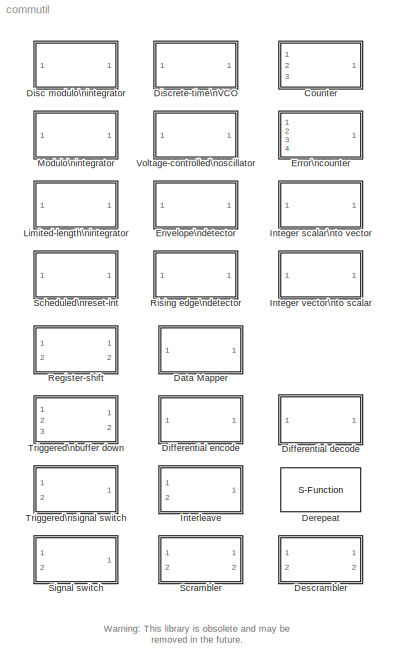
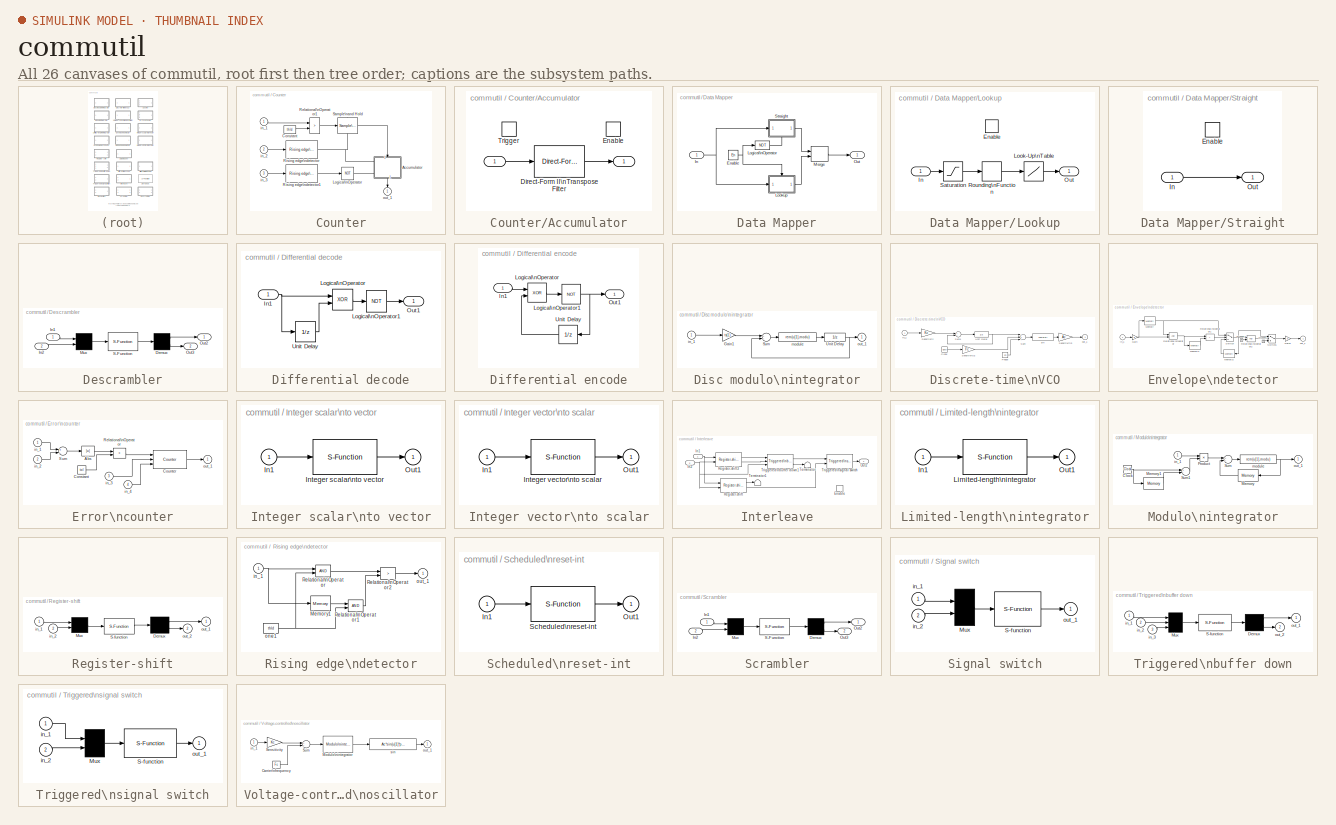
[diagram: thumbnail index - all 26 canvases of the model, root first then tree order]
MODEL commutil
KIND library
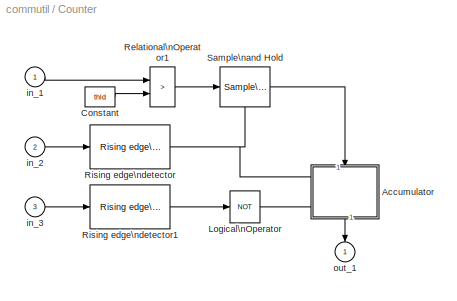
BLOCK [SubSystem] Counter
  MaskDescription = If the 1st inport value is larger than the threshold, the counter increases one at the rising edge of the 2nd inport pulse.
  MaskDisplay = plot(0,0,100,100,[5 10 10 8 10 12 10 10 15],[5 5 12 8 12 8 12 15 15]+40,[5 10 10 8 10 12 10 10 15],[5 5 12 8 12 8 12 15 15]);\ndisp('Counter')
  MaskEnableString = on
  MaskHelp = If the signal at the 1st inport is larger than or equal to the given threshold at the rising edge of the 2nd inport, the counter increases by one. The rising edge of the 3rd port resets the counter to zero.
  MaskIconFrame = on
  MaskIconOpaque = on
  MaskIconRotate = none
  MaskIconUnits = autoscale
  MaskPromptString = Threshold:
  MaskStyleString = edit
  MaskToolTipString = on
  MaskTunableValueString = on
  MaskType = Resettable number counter
  MaskValueString = .2
  MaskVariables = thld=@1;
  MaskVisibilityString = on
  Ports = [3, 1]
  TreatAsAtomicUnit = off
BLOCK [SubSystem] Counter/Accumulator
  Ports = [1, 1, 1, 1]
  TreatAsAtomicUnit = on
BLOCK [Inport] Counter/Accumulator/ 
BLOCK [Outport] Counter/Accumulator/  
  InitialOutput = 0
  OutputWhenDisabled = reset
BLOCK [Reference] Counter/Accumulator/Direct-Form II\nTranspose Filter  REF=dsparch2/Direct-Form II\nTranspose Filter
  Ports = [1, 1]
  SourceBlock = dsparch2/Direct-Form II\nTranspose Filter
  SourceType = Direct-Form II Transpose Filter
  den = [1 -1]
  frame = off
  ic = 0
  num = 1
  numCHANS = 1
BLOCK [EnablePort] Counter/Accumulator/Enable
  Ports = []
  StatesWhenEnabling = reset
BLOCK [TriggerPort] Counter/Accumulator/Trigger
  Ports = []
BLOCK [Constant] Counter/Constant
  Value = thld
BLOCK [Logic] Counter/Logical\nOperator
  Operator = NOT
  Ports = [1, 1]
BLOCK [RelationalOperator] Counter/Relational\nOperator1
  Operator = >
BLOCK [Reference] Counter/Rising edge\ndetector  REF=commutil/Rising edge\ndetector
  Ports = [1, 1]
  SourceBlock = commutil/Rising edge\ndetector
  SourceType = Edge detection
  thld = 0.5
BLOCK [Reference] Counter/Rising edge\ndetector1  REF=commutil/Rising edge\ndetector
  Ports = [1, 1]
  SourceBlock = commutil/Rising edge\ndetector
  SourceType = Edge detection
  thld = 0.5
BLOCK [Reference] Counter/Sample\nand Hold  REF=dspswit2/Sample\nand Hold
  Ports = [1, 1, 0, 1]
  SourceBlock = dspswit2/Sample\nand Hold
  SourceType = Sample and Hold
  initCond = 0
  trig = Rising edge
BLOCK [Inport] Counter/in_1
BLOCK [Inport] Counter/in_2
  Port = 2
BLOCK [Inport] Counter/in_3
  Port = 3
BLOCK [Outport] Counter/out_1
  InitialOutput = 0
BLOCK [SubSystem] Data Mapper
  MaskCallbackString = commblkmapdata(gcb,'MapMode');||
  MaskDescription = Map integer symbols from one coding scheme to another.
  MaskDisplay = disp('Data\\nMapper');
  MaskEnableString = on,on,off
  MaskHelp = <P><FONT SIZE=+0>The Data Mapper block accepts integer inputs and produces\ninteger outputs. You can select one of four mapping modes: <B>Binary to\nGray, Gray to Binary, User Defined, or Straight Through</B>.</FONT>\n\n<P><FONT SIZE=+0>Gray coding is an ordering of binary numbers such that\nall adjacent numbers differ by only one bit. However, the inputs and outputs\nof this block are integers, n...<+4760ch>
  MaskIconFrame = on
  MaskIconOpaque = on
  MaskIconRotate = none
  MaskIconUnits = autoscale
  MaskInitialization = [En,IPValues,OPValues,SatValue]=commblkmapdata(gcb,'init',{MapMode M MapVec});
  MaskPromptString = Mapping mode:|Symbol set size (M):|Mapping vector:
  MaskSelfModifiable = on
  MaskStyleString = popup(Binary to Gray|Gray to Binary|User Defined|Straight through),edit,edit
  MaskToolTipString = on,on,on
  MaskTunableValueString = off,off,off
  MaskType = Data Mapper
  MaskValueString = Binary to Gray|8|[0 1 3 2 7 6 4 5]
  MaskVarAliasString = ,,
  MaskVariables = MapMode=@1;M=@2;MapVec=@3;
  MaskVisibilityString = on,on,on
  Ports = [1, 1]
  TreatAsAtomicUnit = off
BLOCK [Constant] Data Mapper/Enable
  Value = En
BLOCK [Inport] Data Mapper/In
BLOCK [Logic] Data Mapper/Logical\nOperator
  Inputs = 1
  Operator = NOT
  Ports = [1, 1]
BLOCK [SubSystem] Data Mapper/Lookup
  Ports = [1, 1, 1]
  TreatAsAtomicUnit = on
BLOCK [EnablePort] Data Mapper/Lookup/Enable
  Ports = []
BLOCK [Inport] Data Mapper/Lookup/In
BLOCK [Lookup] Data Mapper/Lookup/Look-Up\nTable
  InputValues = IPValues
  OutputValues = OPValues
BLOCK [Outport] Data Mapper/Lookup/Out
BLOCK [Rounding] Data Mapper/Lookup/Rounding\nFunction
  Operator = round
BLOCK [Saturate] Data Mapper/Lookup/Saturation
  LowerLimit = 0
  UpperLimit = SatValue
BLOCK [Merge] Data Mapper/Merge
  Ports = [2, 1]
BLOCK [Outport] Data Mapper/Out
BLOCK [SubSystem] Data Mapper/Straight
  Ports = [1, 1, 1]
  TreatAsAtomicUnit = on
BLOCK [EnablePort] Data Mapper/Straight/Enable
  Ports = []
BLOCK [Inport] Data Mapper/Straight/In
BLOCK [Outport] Data Mapper/Straight/Out
BLOCK [S-Function] Derepeat
  FunctionName = scomdrpt
  MaskCallbackString = ||commblkdrpt(gcb,'cbFBFlag');||commblkdrpt(gcb,'cbMode');
  MaskDescription = Derepeat by an integer factor.  The value of each output sample is the mean value of N consecutive input samples.
  MaskDisplay = disp(sprintf('Derepeat\\n/%d',N));
  MaskEnableString = on,on,on,off,off
  MaskHelp = web(commbhelp);
  MaskIconFrame = on
  MaskIconOpaque = on
  MaskIconRotate = none
  MaskIconUnits = autoscale
  MaskInitialization = commblkdrpt(gcb,'init');\n
  MaskPromptString = Derepeat factor, N:|Initial condition:|Frame-based inputs|Number of channels:|Framing:
  MaskSelfModifiable = on
  MaskStyleString = edit,edit,checkbox,edit,popup(Maintain input frame size|Maintain input frame rate)
  MaskToolTipString = on,on,on,on,on
  MaskTunableValueString = off,off,off,off,off
  MaskType = Derepeat
  MaskValueString = 10|0|off|1|Maintain input frame size
  MaskVarAliasString = ,,,,
  MaskVariables = N=@1;ic=@2;frame=@3;nchans=@4;mode=@5;
  MaskVisibilityString = on,on,on,on,on
  Parameters = N,ic,frame,nchans,mode
  Ports = [1, 1]
BLOCK [SubSystem] Descrambler
  MaskCallbackString = ||
  MaskDescription = This block outputs the descrambled signal of the 1st inport input symbol. The block input and output are controlled by the rising edge of the 2nd inport input signal. The block works only if the enable signal is on. This block takes scalar input only. The second output port outputs the states of the registers.
  MaskDisplay = disp('Descrambler')\nplot(0,0,100,100,[5 10 10 8 10 12 10 10 15],[5 5 12 8 12 8 12 15 15]+10)
  MaskEnableString = on,on,on
  MaskHelp = Scrambling is a simple method to minimize transferring a long series of the same number, such as 1 or 0. Its operation is based on a scrambler polynomial g(x). This block descrambles the input signal using the polynomial g(x). You can specify the polynomial using the coefficients of the polynomial or by specifying the terms for which the coefficient is 1; for other terms, the coefficient is the de...<+310ch>
  MaskIconFrame = on
  MaskIconOpaque = on
  MaskIconRotate = none
  MaskIconUnits = autoscale
  MaskInitialization = if M<=0, error('Scramble calculation base must be a positive interger.'); end\nif max(poly)>=M\n error('Scramble polynomial coefficients must be less than calculation base.');\nelseif min(poly)<0\n  tmp = zeros(1, abs(min(poly))+1);\n  for i = 1:length(poly), tmp(abs(poly(i))+1) = 1; end\n  poly = tmp;\nend\nif poly(1) == 0, poly(1) = 1; end\ns = length(poly)-1;
  MaskPromptString = Calculation base:|Scramble polynomial:|Initial states
  MaskStyleString = edit,edit,edit
  MaskToolTipString = on,on,on
  MaskTunableValueString = on,on,on
  MaskType = Descrambler
  MaskValueString = 2|[0 -5 -6]|[1 1 0 1 0 1]
  MaskVarAliasString = ,,
  MaskVariables = M=@1;poly=@2;ini_sta=@3;
  MaskVisibilityString = on,on,on
  Ports = [2, 2]
  TreatAsAtomicUnit = off
BLOCK [Demux] Descrambler/Demux
  Outputs = [1 s]
  Ports = [1, 2]
BLOCK [Inport] Descrambler/In1
BLOCK [Inport] Descrambler/In2
  Port = 2
BLOCK [Mux] Descrambler/Mux
  Inputs = 2
  Ports = [2, 1]
BLOCK [Outport] Descrambler/Out2
  InitialOutput = 0
BLOCK [Outport] Descrambler/Out3
  InitialOutput = 0
  Port = 2
BLOCK [S-Function] Descrambler/S-Function
  FunctionName = simscram
  Parameters = M, poly, 1, ini_sta
  Ports = [1, 1]
BLOCK [SubSystem] Differential decode
  MaskDescription = The binary scalar output of this block, D(k), is a logical differential computation of the binary scalar input of this block, M(k). D(k) = rem(M(k) + M(k-1) + 1,2).
  MaskDisplay = disp('Differential\\ndecoder')
  MaskEnableString = on
  MaskHelp = This block decodes a differential encoded signal. Let the input signal be M(k) and the output signal be D(k). Then, D(k) = rem(M(k) + M(k-1) + 1,2), where M(k-1) is the previous input to this block. The time interval between M(k) and M(k-1) is td, the symbol interval.
  MaskIconFrame = on
  MaskIconOpaque = on
  MaskIconRotate = none
  MaskIconUnits = autoscale
  MaskPromptString = Symbol interval (sec):
  MaskStyleString = edit
  MaskToolTipString = on
  MaskTunableValueString = on
  MaskType = Binary differential decoder
  MaskValueString = 1
  MaskVariables = td=@1;
  MaskVisibilityString = on
  Ports = [1, 1]
  TreatAsAtomicUnit = off
BLOCK [Inport] Differential decode/In1
BLOCK [Logic] Differential decode/Logical\nOperator
  Operator = XOR
  Ports = [2, 1]
BLOCK [Logic] Differential decode/Logical\nOperator1
  Inputs = 1
  Operator = NOT
  Ports = [1, 1]
BLOCK [Outport] Differential decode/Out1
  InitialOutput = 0
BLOCK [UnitDelay] Differential decode/Unit Delay
  SampleTime = td
BLOCK [SubSystem] Differential encode
  MaskDescription = The binary scalar output of this block, D(k), is a logical differential computation of the binary scalar input to this block, M(k) with the  previous output of this block D(k-1). D(k) = rem(M(k) + D(k-1),2)
  MaskDisplay = disp('Differential\\nencoder')
  MaskEnableString = on
  MaskHelp = This block encodes the binary scalar signal using the differential encode method. Let the input signal be M(k) and the output signal be D(k). Then, D(k) = rem(M(k) + D(k-1),2), where D(k-1) is the previous output of this block. The time interval between D(k) and D(k-1) is td, the symbol interval.
  MaskIconFrame = on
  MaskIconOpaque = on
  MaskIconRotate = none
  MaskIconUnits = autoscale
  MaskPromptString = Symbol interval (sec):
  MaskStyleString = edit
  MaskToolTipString = on
  MaskTunableValueString = on
  MaskType = Binary differential encoder
  MaskValueString = 1
  MaskVariables = td=@1;
  MaskVisibilityString = on
  Ports = [1, 1]
  TreatAsAtomicUnit = off
BLOCK [Inport] Differential encode/In1
BLOCK [Logic] Differential encode/Logical\nOperator
  Operator = XOR
  Ports = [2, 1]
BLOCK [Logic] Differential encode/Logical\nOperator1
  Inputs = 1
  Operator = NOT
  Ports = [1, 1]
BLOCK [Outport] Differential encode/Out1
  InitialOutput = 0
BLOCK [UnitDelay] Differential encode/Unit Delay
  SampleTime = td
BLOCK [SubSystem] Disc modulo\nintegrator
  MaskCallbackString = ||
  MaskDescription = When the absolute value of the state exceeds the modulo bound, the state is reset to be the remainder of the state divided by the modulo bound.
  MaskDisplay = disp('Discrete\\nmod-int')
  MaskEnableString = on,on,on
  MaskHelp = This block calculate the integration of the input signal. The absolute value of this integrator will not exceed the specified module bound. The state value is reset to be the remainder of the state divided by the modulo bound. This block can only be used for scale value calculation. This block is a discrete-time integration block.
  MaskIconFrame = on
  MaskIconOpaque = on
  MaskIconRotate = none
  MaskIconUnits = autoscale
  MaskPromptString = Modulo bound:|Initial state:|Sample time (sec):
  MaskStyleString = edit,edit,edit
  MaskToolTipString = on,on,on
  MaskTunableValueString = on,on,on
  MaskType = Discrete-time modulo integrator
  MaskValueString = 1|0|.01
  MaskVarAliasString = ,,
  MaskVariables = modu=@1;init=@2;ts=@3;
  MaskVisibilityString = on,on,on
  Ports = [1, 1]
  TreatAsAtomicUnit = off
BLOCK [Gain] Disc modulo\nintegrator/Gain1
  Gain = ts(1)
BLOCK [Sum] Disc modulo\nintegrator/Sum
  Ports = [2, 1]
BLOCK [UnitDelay] Disc modulo\nintegrator/Unit Delay
  SampleTime = ts
  X0 = init
BLOCK [Inport] Disc modulo\nintegrator/in_1
BLOCK [Fcn] Disc modulo\nintegrator/module
  Expr = rem(u[1],modu)
BLOCK [Outport] Disc modulo\nintegrator/out_1
  InitialOutput = 0
BLOCK [SubSystem] Discrete-time\nVCO
  MaskCallbackString = ||||
  MaskDescription = The frequency of the output signal changes with the input signal.
  MaskDisplay = disp('Discrete\\nVCO')
  MaskEnableString = on,on,on,on,on
  MaskHelp = This block causes the frequency of the sinusoidal oscillation signal to change with the input signal voltage. The input sensitivity is the preamplifier added to the input signal. This block uses a discrete-time integrator.
  MaskIconFrame = on
  MaskIconOpaque = on
  MaskIconRotate = none
  MaskIconUnits = autoscale
  MaskInitialization = pi2=2*pi;Kc=Kc*pi2*ts(1);Fc=Fc*pi2;
  MaskPromptString = Output amplitude:|Oscillation frequency (Hz):|Input sensitivity:|Initial phase (rad):|Sample time (sec):
  MaskStyleString = edit,edit,edit,edit,edit
  MaskToolTipString = on,on,on,on,on
  MaskTunableValueString = on,on,on,on,on
  MaskType = Voltage-controlled oscillator
  MaskValueString = 1|10|1|0|.01
  MaskVarAliasString = ,,,,
  MaskVariables = Ac=@1;Fc=@2;Kc=@3;Ph=@4;ts=@5;
  MaskVisibilityString = on,on,on,on,on
  Ports = [1, 1]
  TreatAsAtomicUnit = off
BLOCK [Clock] Discrete-time\nVCO/Clock
  Decimation = 10
BLOCK [Constant] Discrete-time\nVCO/Phase
  Value = Ph
BLOCK [Gain] Discrete-time\nVCO/Sensitivity
  Gain = Kc
BLOCK [Gain] Discrete-time\nVCO/Sensitivity2
  Gain = Fc
BLOCK [Gain] Discrete-time\nVCO/Sensitivity3
  Gain = Ac
BLOCK [Sum] Discrete-time\nVCO/Sum
  Inputs = +++
  Ports = [3, 1]
BLOCK [Sum] Discrete-time\nVCO/Sum1
  Ports = [2, 1]
BLOCK [UnitDelay] Discrete-time\nVCO/Unit Delay
  SampleTime = ts
BLOCK [Inport] Discrete-time\nVCO/in_1
BLOCK [Outport] Discrete-time\nVCO/out_1
  InitialOutput = 0
BLOCK [Fcn] Discrete-time\nVCO/sin
  Expr = cos(u[1])
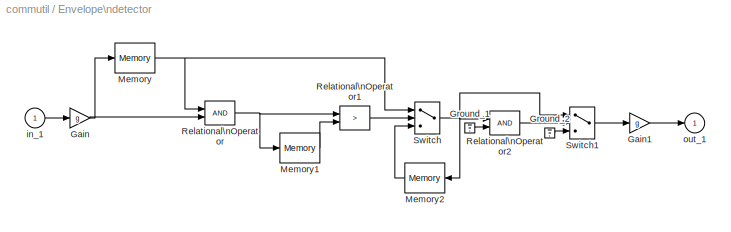
BLOCK [SubSystem] Envelope\ndetector
  MaskDescription = Output the upper or lower boundary of the input signal.
  MaskDisplay = disp('Envelope\\ndetector')
  MaskEnableString = on
  MaskHelp = This block detects the upper or lower boundary of the envelope of the input signal. This block finds the maximum or minimum value of the input signal. The block is noise sensitive.
  MaskIconFrame = on
  MaskIconOpaque = on
  MaskIconRotate = none
  MaskIconUnits = autoscale
  MaskInitialization = if length(x)<2, error('Error in Envelop Detector');end;x=x(1:2);g=1;if x=='lo', g=-1;end;
  MaskPromptString = Boundary side ('upper' or 'lower'):
  MaskStyleString = edit
  MaskToolTipString = on
  MaskTunableValueString = on
  MaskType = Envelope detector
  MaskValueString = 'upper'
  MaskVariables = x=@1;
  MaskVisibilityString = on
  Ports = [1, 1]
  TreatAsAtomicUnit = off
BLOCK [Gain] Envelope\ndetector/Gain
  Gain = g
BLOCK [Gain] Envelope\ndetector/Gain1
  Gain = g
BLOCK [Ground] Envelope\ndetector/Ground_1
BLOCK [Ground] Envelope\ndetector/Ground_2
BLOCK [Memory] Envelope\ndetector/Memory
BLOCK [Memory] Envelope\ndetector/Memory1
BLOCK [Memory] Envelope\ndetector/Memory2
  MaskIconFrame = on
  MaskIconOpaque = on
  MaskIconRotate = none
  MaskIconUnits = autoscale
BLOCK [RelationalOperator] Envelope\ndetector/Relational\nOperator
BLOCK [RelationalOperator] Envelope\ndetector/Relational\nOperator1
  Operator = >
BLOCK [RelationalOperator] Envelope\ndetector/Relational\nOperator2
BLOCK [Switch] Envelope\ndetector/Switch
  Threshold = eps
BLOCK [Switch] Envelope\ndetector/Switch1
  Threshold = eps
BLOCK [Inport] Envelope\ndetector/in_1
BLOCK [Outport] Envelope\ndetector/out_1
  InitialOutput = 0
BLOCK [SubSystem] Error\ncounter
  MaskCallbackString = |
  MaskDescription = If the 1st and 2nd inport values do not match at the rising edge of the 3rd inport, the counter increases by one.
  MaskDisplay = plot(0,0,100,100,[5 10 10 8 10 12 10 10 15],[5 5 12 8 12 8 12 15 15]+30,[5 10 10 8 10 12 10 10 15],[5 5 12 8 12 8 12 15 15]);\ndisp('Err count')
  MaskEnableString = on,on
  MaskHelp = If the signals at the 1st and 2nd inport do not match at the rising edge of the 3rd inport pulse, the counter increases by one. The rising edge of the 4th inport resets the counter to zero.
  MaskIconFrame = on
  MaskIconOpaque = on
  MaskIconRotate = none
  MaskIconUnits = autoscale
  MaskPromptString = Threshold:|Tolerance:
  MaskStyleString = edit,edit
  MaskToolTipString = on,on
  MaskTunableValueString = on,on
  MaskType = Error counter
  MaskValueString = 0.2|eps
  MaskVarAliasString = ,
  MaskVariables = thld=@1;tol=@2;
  MaskVisibilityString = on,on
  Ports = [4, 1]
  TreatAsAtomicUnit = off
BLOCK [Abs] Error\ncounter/Abs
BLOCK [Constant] Error\ncounter/Constant
  Value = tol
BLOCK [Reference] Error\ncounter/Counter  REF=commutil/Counter
  Ports = [3, 1]
  SourceBlock = commutil/Counter
  SourceType = Resettable number counter
  thld = .2
BLOCK [RelationalOperator] Error\ncounter/Relational\nOperator
  Operator = >
BLOCK [Sum] Error\ncounter/Sum
  Inputs = +-
  Ports = [2, 1]
BLOCK [Inport] Error\ncounter/in_1
BLOCK [Inport] Error\ncounter/in_2
  Port = 2
BLOCK [Inport] Error\ncounter/in_3
  Port = 3
BLOCK [Inport] Error\ncounter/in_4
  Port = 4
BLOCK [Outport] Error\ncounter/out_1
  InitialOutput = 0
BLOCK [SubSystem] Integer scalar\nto vector
  MaskCallbackString = ||
  MaskDescription = Convert decimal integer input to base M integer and output each position of the converted integer using output vector.
  MaskDisplay = disp('Sca to vec\\nconverter')
  MaskEnableString = on,on,on
  MaskHelp = This block converts decimal integer scalar input to a base M integer. M must be a positive integer. The block outputs the base M integer using a vector. The 1st element in the output vector contains the 1's position. The 2nd element in the output vector contains the M's position, and so on. The output vector length is given by setting the parameter entry.\n\nThe most significant digit may be outpu...<+64ch>
  MaskIconFrame = on
  MaskIconOpaque = on
  MaskIconRotate = none
  MaskIconUnits = autoscale
  MaskPromptString = Output vector length:|Conversion base M:|First element of output vector is most significant digit
  MaskStyleString = edit,edit,checkbox
  MaskToolTipString = on,on,on
  MaskTunableValueString = on,on,on
  MaskType = Decimal to base M vector
  MaskValueString = 4|2|off
  MaskVarAliasString = ,,
  MaskVariables = len=@1;p=@2;MSBFlag=@3;
  MaskVisibilityString = on,on,on
  Ports = [1, 1]
  TreatAsAtomicUnit = off
BLOCK [Inport] Integer scalar\nto vector/In1
BLOCK [S-Function] Integer scalar\nto vector/Integer scalar\nto vector
  FunctionName = scomsc2vec
  Parameters = len, p, MSBFlag
  Ports = [1, 1]
BLOCK [Outport] Integer scalar\nto vector/Out1
  InitialOutput = 0
BLOCK [SubSystem] Integer vector\nto scalar
  MaskCallbackString = |
  MaskDescription = Convert base M integer with each position in the input vector into scalar decimal output.
  MaskDisplay = disp('Vec to sca\\nconverter')
  MaskEnableString = on,on
  MaskHelp = This block convert the base M vector into scalar decimal integer output. Each element of the input vector is one position of the digit of the base M integer. The 1st element in the input vector contains the 1's position. The 2nd element in the input vector contains the M's position.\n\nThe first element of the input vector may be used as the most significant digit by selecting the check box.
  MaskIconFrame = on
  MaskIconOpaque = on
  MaskIconRotate = none
  MaskIconUnits = autoscale
  MaskPromptString = Input integer base M:|First element of input vector is most significant digit
  MaskStyleString = edit,checkbox
  MaskToolTipString = on,on
  MaskTunableValueString = on,on
  MaskType = Base M vector to decimal integer
  MaskValueString = 2|off
  MaskVarAliasString = ,
  MaskVariables = p=@1;MSBFlag=@2;
  MaskVisibilityString = on,on
  Ports = [1, 1]
  TreatAsAtomicUnit = off
BLOCK [Inport] Integer vector\nto scalar/In1
BLOCK [S-Function] Integer vector\nto scalar/Integer vector\nto scalar
  FunctionName = scomvec2sc
  Parameters = p,MSBFlag
  Ports = [1, 1]
BLOCK [Outport] Integer vector\nto scalar/Out1
  InitialOutput = 0
BLOCK [SubSystem] Interleave
  MaskCallbackString = |
  MaskDescription = This block takes a new symbol from the 1st input port and outputs an interleaved signal to the 1st output port at the rising edge of the 2nd inport input signal. The block works only if the enable signal is on. This block takes scalar input only. The output is the interleaved result.
  MaskDisplay = disp('Block\\ninterleave')\nplot(0,0,100,100,[5 10 10 8 10 12 10 10 15],[5 5 12 8 12 8 12 15 15]+10)
  MaskEnableString = on,on
  MaskHelp = Block interleaving is a simple method to convert burst errors to random errors. The block keeps an N-column by M-row buffer. The input to the buffer is row by row. The output from this buffer is column by column. The output of this block has an N*M step delay from the starting point of the input. Before a meaningful message is output, this block outputs 0s. Block deinterleave uses the Block Interl...<+200ch>
  MaskIconFrame = on
  MaskIconOpaque = off
  MaskIconRotate = none
  MaskIconUnits = autoscale
  MaskInitialization = if N<=0, error('Row length must be a positive number.'); end;\nif M<=0 error('Interleave row number must be a positive number.'); end;
  MaskPromptString = Input code row length (N):|Interleave row number (M):
  MaskStyleString = edit,edit
  MaskToolTipString = on,on
  MaskTunableValueString = on,on
  MaskType = Block Interleave
  MaskValueString = 3|4
  MaskVarAliasString = ,
  MaskVariables = N=@1;M=@2;
  MaskVisibilityString = on,on
  Ports = [2, 1, 1]
  TreatAsAtomicUnit = on
BLOCK [EnablePort] Interleave/Enable
  Ports = []
BLOCK [Inport] Interleave/In1
BLOCK [Inport] Interleave/In2
  Port = 2
BLOCK [Outport] Interleave/Out2
  InitialOutput = 0
BLOCK [Reference] Interleave/Register-shift  REF=commutil/Register-shift
  Ports = [2, 2]
  SourceBlock = commutil/Register-shift
  SourceType = Register-shift
  shft_out = [M:-1:1]
  thrhld = .1
BLOCK [Reference] Interleave/Register-shift3  REF=commutil/Register-shift
  Ports = [2, 2]
  SourceBlock = commutil/Register-shift
  SourceType = Register-shift
  shft_out = [N*M:-1:1]
  thrhld = .1
BLOCK [Terminator] Interleave/Terminator
BLOCK [Terminator] Interleave/Terminator1
BLOCK [Reference] Interleave/Triggered\nbuffer down1  REF=commutil/Triggered\nbuffer down
  Ports = [3, 2]
  SourceBlock = commutil/Triggered\nbuffer down
  SourceType = Triggered buffer down
  cycl_flag = 1
  idx_inc = N*ones(1,N)
  in_size = N*M
  ini_idx = [0:N-1]
  thrshld = .1
BLOCK [Reference] Interleave/Triggered\nsignal switch  REF=commutil/Triggered\nsignal switch
  Ports = [2, 1]
  SourceBlock = commutil/Triggered\nsignal switch
  SourceType = Vector signal re-distribution
  in = 0
  ke = -1
  sw = [1:N]'
  tt = .1
BLOCK [SubSystem] Limited-length\nintegrator
  MaskCallbackString = |||
  MaskDescription = Output the integration of the input from time t-T to t, where T is the size of the integration window.
  MaskDisplay = disp('Windowed\\nintegrator')
  MaskEnableString = on,on,on,on
  MaskHelp = This block outputs\\n t\\n int u(t) dt\\n t-T\\n The output vector length is the same as the input vector length. You can choose forward, backward, or first order integration methods.
  MaskIconFrame = on
  MaskIconOpaque = on
  MaskIconRotate = none
  MaskIconUnits = autoscale
  MaskPromptString = Input vector size:|Integration window length:|Sample time (sec):|Method ('forward', 'backward', or 'first order'):
  MaskStyleString = edit,edit,edit,edit
  MaskToolTipString = on,on,on,on
  MaskTunableValueString = on,on,on,on
  MaskType = Windowed integration
  MaskValueString = 2|1|.1|'first order'
  MaskVarAliasString = ,,,
  MaskVariables = vec=@1;T=@2;sample_time=@3;method=@4;
  MaskVisibilityString = on,on,on,on
  Ports = [1, 1]
  TreatAsAtomicUnit = off
BLOCK [Inport] Limited-length\nintegrator/In1
BLOCK [S-Function] Limited-length\nintegrator/Limited-length\nintegrator
  FunctionName = moveint
  Parameters = vec,T,sample_time,method
  Ports = [1, 1]
BLOCK [Outport] Limited-length\nintegrator/Out1
  InitialOutput = 0
BLOCK [SubSystem] Modulo\nintegrator
  MaskCallbackString = |
  MaskDescription = When the absolute value of the state exceeds the modulo bound, the state is reset to be the remainder of the state divided by the modulo bound.
  MaskDisplay = disp('Modulo\\nintegrator')
  MaskEnableString = on,on
  MaskHelp = This block calculate the integration of the input signal. The absolute value of this integrator will not exceed the specified module bound. The state value is reset to be the remainder of the state divided by the modulo bound. This block can only be used for scale value calculation. This block is a continuous-time integration block.
  MaskIconFrame = on
  MaskIconOpaque = on
  MaskIconRotate = none
  MaskIconUnits = autoscale
  MaskPromptString = Modulo bound:|Initial state:
  MaskStyleString = edit,edit
  MaskToolTipString = on,on
  MaskTunableValueString = on,on
  MaskType = Modulo integrator
  MaskValueString = 1|0
  MaskVarAliasString = ,
  MaskVariables = modu=@1;init=@2;
  MaskVisibilityString = on,on
  Ports = [1, 1]
  TreatAsAtomicUnit = off
BLOCK [Clock] Modulo\nintegrator/Clock
  Decimation = 10
BLOCK [Memory] Modulo\nintegrator/Memory
  MaskIconFrame = on
  MaskIconOpaque = on
  MaskIconRotate = none
  MaskIconUnits = autoscale
  X0 = init
BLOCK [Memory] Modulo\nintegrator/Memory1
  MaskIconFrame = on
  MaskIconOpaque = on
  MaskIconRotate = none
  MaskIconUnits = autoscale
BLOCK [Product] Modulo\nintegrator/Product
  Ports = [2, 1]
BLOCK [Sum] Modulo\nintegrator/Sum
  Ports = [2, 1]
BLOCK [Sum] Modulo\nintegrator/Sum1
  Inputs = +-
  Ports = [2, 1]
BLOCK [Inport] Modulo\nintegrator/in_1
BLOCK [Fcn] Modulo\nintegrator/module
  Expr = rem(u[1],modu)
BLOCK [Outport] Modulo\nintegrator/out_1
  InitialOutput = 0
BLOCK [SubSystem] Register-shift
  MaskCallbackString = |
  MaskDescription = The rising edge of the 2nd port pulse triggers the block to input the 1st port data and to shift the register.
  MaskDisplay = plot(0,0,100,100,[5 10 10 8 10 12 10 10 15],[5 5 12 8 12 8 12 15 15]+10,[5 10 10 8 10 12 10 10 15]+80,[5 5 12 8 12 8 12 15 15]+10);\ndisp('Reg. shift')
  MaskEnableString = on,on
  MaskHelp = This block stores the scalar input signal from the 1st input port at the rising edge of the pulse from the 2nd port. The 1st outport outputs a vector with its size the same as the \"Delay steps\" entree of this block. The maximum delay is the register size of this block. The second outport outputs a positive pulse when the register is\\nrefreshed.
  MaskIconFrame = on
  MaskIconOpaque = on
  MaskIconRotate = none
  MaskIconUnits = autoscale
  MaskInitialization = len_rg=length(shft_out);\n
  MaskPromptString = Delay steps (output length is same as this vector size):|Threshold in detecting the rising edge of the pulse:
  MaskStyleString = edit,edit
  MaskToolTipString = on,on
  MaskTunableValueString = on,on
  MaskType = Register-shift
  MaskValueString = [127:-1:0]|.1
  MaskVarAliasString = ,
  MaskVariables = shft_out=@1;thrhld=@2;
  MaskVisibilityString = on,on
  Ports = [2, 2]
  TreatAsAtomicUnit = off
BLOCK [Demux] Register-shift/Demux
  Outputs = [len_rg, 1]
  Ports = [1, 2]
BLOCK [Mux] Register-shift/Mux
  Inputs = 2
  Ports = [2, 1]
BLOCK [S-Function] Register-shift/S-function
  FunctionName = regshift
  Parameters = shft_out, thrhld
  Ports = [1, 1]
BLOCK [Inport] Register-shift/in_1
BLOCK [Inport] Register-shift/in_2
  Port = 2
BLOCK [Outport] Register-shift/out_1
  InitialOutput = 0
BLOCK [Outport] Register-shift/out_2
  InitialOutput = 0
  Port = 2
BLOCK [SubSystem] Rising edge\ndetector
  MaskDescription = Detect the rising edge of the input signal. Output one when the rising edge is detected.
  MaskDisplay = plot(0,0,100,100,[5 10 10 8 10 12 10 10 15]+80,[5 5 12 8 12 8 12 15 15]+35, [5 10 10 15 15 20]-5,[5 5 10 10 5 5]+40);disp('Edge det.')
  MaskEnableString = on
  MaskHelp = This block outputs one when the input signal reaches a value larger than or equal to the given threshold value at the current time and the value was below the threshold one time step before. Otherwise, the block outputs zero.
  MaskIconFrame = on
  MaskIconOpaque = on
  MaskIconRotate = none
  MaskIconUnits = autoscale
  MaskPromptString = Threshold:
  MaskStyleString = edit
  MaskToolTipString = on
  MaskTunableValueString = on
  MaskType = Edge detection
  MaskValueString = 0.5
  MaskVariables = thld=@1;
  MaskVisibilityString = on
  Ports = [1, 1]
  TreatAsAtomicUnit = off
BLOCK [Memory] Rising edge\ndetector/Memory1
BLOCK [RelationalOperator] Rising edge\ndetector/Relational\nOperator
BLOCK [RelationalOperator] Rising edge\ndetector/Relational\nOperator1
BLOCK [RelationalOperator] Rising edge\ndetector/Relational\nOperator2
  Operator = >
BLOCK [Inport] Rising edge\ndetector/in_1
BLOCK [Constant] Rising edge\ndetector/one1
  Value = thld
BLOCK [Outport] Rising edge\ndetector/out_1
  InitialOutput = 0
BLOCK [SubSystem] Scheduled\nreset-int
  MaskCallbackString = ||
  MaskDescription = Reset the state to be zero(s) at the scheduled reset sample point.
  MaskDisplay = disp('Scheduled\\nreset-int')
  MaskEnableString = on,on,on
  MaskHelp = This block resets the state(s) to be zero(s) at the reset time points. The reset interval can be a two-element vector with the second element as offset. The computation sample time must be smaller than the reset interval. The block resets the state value to be the remainder of the state divided by the modulo bound when the absolute value of the state is larger than the modulo bound.
  MaskIconFrame = on
  MaskIconOpaque = on
  MaskIconRotate = none
  MaskIconUnits = autoscale
  MaskPromptString = Scheduled reset time interval and offset (sec):|Computation sample time and offset (sec):|Modulo bound:
  MaskStyleString = edit,edit,edit
  MaskToolTipString = on,on,on
  MaskTunableValueString = on,on,on
  MaskType = Scheduled reset integration
  MaskValueString = Inf|.05|2
  MaskVarAliasString = ,,
  MaskVariables = td=@1;ts=@2;limit=@3;
  MaskVisibilityString = on,on,on
  Ports = [1, 1]
  TreatAsAtomicUnit = off
BLOCK [Inport] Scheduled\nreset-int/In1
BLOCK [Outport] Scheduled\nreset-int/Out1
  InitialOutput = 0
BLOCK [S-Function] Scheduled\nreset-int/Scheduled\nreset-int
  FunctionName = schdint
  Parameters = td, ts, limit
  Ports = [1, 1]
BLOCK [SubSystem] Scrambler
  MaskCallbackString = ||
  MaskDescription = This block outputs the scrambled signal of the 1st inport input symbol. The block input and output are controlled by the rising edge of the 2nd inport input signal. This block takes scalar input only. The first output port outputs the scrambled signal. The second output port outputs the states of the registers.
  MaskDisplay = disp('Scrambler')\nplot(0,0,100,100,[5 10 10 8 10 12 10 10 15],[5 5 12 8 12 8 12 15 15]+10)
  MaskEnableString = on,on,on
  MaskHelp = Scrambling is a simple method to minimize transferring a long series of the same number, such as 1 or 0. Its operation is based on a scrambler polynomial g(x). This block scrambles the input signal using the polynomial g(x). You can specify the polynomial using the coefficients of the polynomial or by specifying the terms for which the coefficient is 1; for other terms, the coefficient is the defa...<+306ch>
  MaskIconFrame = on
  MaskIconOpaque = on
  MaskIconRotate = none
  MaskIconUnits = autoscale
  MaskInitialization = if M<=0, error('Scramble calculation base must be a positive interger.'); end\nif max(poly)>=M\n error('Scramble polynomial coefficients must be less than calculation base.');\nelseif min(poly)<0\n  tmp = zeros(1, abs(min(poly))+1);\n  for i = 1:length(poly), tmp(abs(poly(i))+1) = 1; end\n  poly = tmp;\nend\nif poly(1) == 0, poly(1) = 1; end\ns = length(poly)-1;
  MaskPromptString = Calculation base:|Scramble polynomial:|Initial states
  MaskStyleString = edit,edit,edit
  MaskToolTipString = on,on,on
  MaskTunableValueString = on,on,on
  MaskType = Scrambler
  MaskValueString = 2|[0 -5 -6]|[1 1 0 1 0 1]
  MaskVarAliasString = ,,
  MaskVariables = M=@1;poly=@2;ini_sta=@3;
  MaskVisibilityString = on,on,on
  Ports = [2, 2]
  TreatAsAtomicUnit = off
BLOCK [Demux] Scrambler/Demux
  Outputs = [1 s]
  Ports = [1, 2]
BLOCK [Inport] Scrambler/In1
BLOCK [Inport] Scrambler/In2
  Port = 2
BLOCK [Mux] Scrambler/Mux
  Inputs = 2
  Ports = [2, 1]
BLOCK [Outport] Scrambler/Out2
  InitialOutput = 0
BLOCK [Outport] Scrambler/Out3
  InitialOutput = 0
  Port = 2
BLOCK [S-Function] Scrambler/S-Function
  FunctionName = simscram
  Parameters = M, poly, 0, ini_sta
  Ports = [1, 1]
BLOCK [SubSystem] Signal switch
  MaskCallbackString = |
  MaskDescription = The output distribution pattern follows the ith row of the switch box, where i is the input from the second port.
  MaskDisplay = disp('Switch\\nbox')
  MaskEnableString = on,on
  MaskHelp = This block follows the switch pattern of ith row in the switch box when the second input port has value i.  When the value in the second input is larger than the switch box row number or less than 1, the block outputs the defualt value.
  MaskIconFrame = on
  MaskIconOpaque = on
  MaskIconRotate = none
  MaskIconUnits = autoscale
  MaskPromptString = Switch box (column number equals block output length):|Default value:
  MaskStyleString = edit,edit
  MaskToolTipString = on,on
  MaskTunableValueString = on,on
  MaskType = Vector signal re-distribution
  MaskValueString = [1 2;2 3;3 1]|[0 0]
  MaskVarAliasString = ,
  MaskVariables = sw=@1;df=@2;
  MaskVisibilityString = on,on
  Ports = [2, 1]
  TreatAsAtomicUnit = off
BLOCK [Mux] Signal switch/Mux
  Inputs = 2
  Ports = [2, 1]
BLOCK [S-Function] Signal switch/S-function
  FunctionName = switchbx
  Parameters = sw,df
  Ports = [1, 1]
BLOCK [Inport] Signal switch/in_1
BLOCK [Inport] Signal switch/in_2
  Port = 2
BLOCK [Outport] Signal switch/out_1
  InitialOutput = 0
BLOCK [SubSystem] Triggered\nbuffer down
  MaskCallbackString = ||||
  MaskDescription = Rising edge of the 2nd port triggers 1st port vector signal in. Rising edge of the 3rd port triggers 1st outport signal out.
  MaskDisplay = plot(0,0,100,100,[5 10 10 8 10 12 10 10 15]-5,[5 5 12 8 12 8 12 15 15],[5 10 10 8 10 12 10 10 15]-5,[5 5 12 8 12 8 12 15 15]+45);\ndisp('Buffer dwn')
  MaskEnableString = on,on,on,on,on
  MaskHelp = The block refreshes its registers with the vector input from the 1st inport at the rising edge of the 2nd inport pulse. The 1st outport outputs the elements of the registers starting with the given initial index. The rising edge of the 3rd inport pulse triggers the 1st output to output the register value with the index increasing the increment value. The second outport outputs a spike pulse when t...<+34ch>
  MaskIconFrame = on
  MaskIconOpaque = on
  MaskIconRotate = none
  MaskIconUnits = autoscale
  MaskInitialization = out_size=length(ini_idx);\n\n\n
  MaskPromptString = Input signal vector size:|Initial index (integer vector):|Increment for each index (integer vector):|Trigger threshold:|When index exceed register size, 1: cyclic out, 0: zero out:
  MaskStyleString = edit,edit,edit,edit,edit
  MaskToolTipString = on,on,on,on,on
  MaskTunableValueString = on,on,on,on,on
  MaskType = Triggered buffer down
  MaskValueString = 128|[0 0 0]|[1 2 3]|.1|1
  MaskVarAliasString = ,,,,
  MaskVariables = in_size=@1;ini_idx=@2;idx_inc=@3;thrshld=@4;cycl_flag=@5;
  MaskVisibilityString = on,on,on,on,on
  Ports = [3, 2]
  TreatAsAtomicUnit = off
BLOCK [Demux] Triggered\nbuffer down/Demux
  Outputs = [out_size 1]
  Ports = [1, 2]
BLOCK [Mux] Triggered\nbuffer down/Mux
  Inputs = [in_size 1 1]
  Ports = [3, 1]
BLOCK [S-Function] Triggered\nbuffer down/S-function
  FunctionName = regdown
  Parameters = ini_idx, idx_inc, thrshld, cycl_flag
  Ports = [1, 1]
BLOCK [Inport] Triggered\nbuffer down/in_1
BLOCK [Inport] Triggered\nbuffer down/in_2
  Port = 2
BLOCK [Inport] Triggered\nbuffer down/in_3
  Port = 3
BLOCK [Outport] Triggered\nbuffer down/out_1
  InitialOutput = 0
BLOCK [Outport] Triggered\nbuffer down/out_2
  InitialOutput = 0
  Port = 2
BLOCK [SubSystem] Triggered\nsignal switch
  MaskCallbackString = |||
  MaskDescription = The rising edge from the 2nd inport triggers the block to output the input element with the index given in the next row of the switch box.
  MaskDisplay = plot(0,0,100,100,[5 10 10 8 10 12 10 10 15],[5 5 12 8 12 8 12 15 15]);disp('Vct re-arr')
  MaskEnableString = on,on,on,on
  MaskHelp = When current switch box row is [i,j], the 1st and 2nd elements output the ith and jth input respectively. The switch_box column number must be same lengths as the output, keep_value, and init_value. The rising edge of the 2nd inport triggers the distribution pattern following the next row of the switch_box. With 0 element in switch_box, the output keeps the last output value with a >=0 keep_value;...<+30ch>
  MaskIconFrame = on
  MaskIconOpaque = on
  MaskIconRotate = none
  MaskIconUnits = autoscale
  MaskPromptString = Switch box (column number equals block output length):|Keeping value (flag 0 element in switch box):|Initial value (before the 1st trigger is detected):|Trigger threshold:
  MaskStyleString = edit,edit,edit,edit
  MaskToolTipString = on,on,on,on
  MaskTunableValueString = on,on,on,on
  MaskType = Vector signal re-distribution
  MaskValueString = [1 2 3;2 3 1;3 1 2]|[-1 -1 -1]|[0 0 0]|.1
  MaskVarAliasString = ,,,
  MaskVariables = sw=@1;ke=@2;in=@3;tt=@4;
  MaskVisibilityString = on,on,on,on
  Ports = [2, 1]
  TreatAsAtomicUnit = off
BLOCK [Mux] Triggered\nsignal switch/Mux
  Inputs = 2
  Ports = [2, 1]
BLOCK [S-Function] Triggered\nsignal switch/S-function
  FunctionName = stdmamux
  Parameters = sw,ke,in,tt
  Ports = [1, 1]
BLOCK [Inport] Triggered\nsignal switch/in_1
BLOCK [Inport] Triggered\nsignal switch/in_2
  Port = 2
BLOCK [Outport] Triggered\nsignal switch/out_1
  InitialOutput = 0
BLOCK [SubSystem] Voltage-controlled\noscillator
  MaskCallbackString = |||
  MaskDescription = The frequency of the output signal changes with the input signal.
  MaskDisplay = disp('VCO')
  MaskEnableString = on,on,on,on
  MaskHelp = This block causes the frequency of the sinusoidal oscillation signal to change with the input signal voltage. The input sensitivity is the preamplifier added to the input signal.
  MaskIconFrame = on
  MaskIconOpaque = on
  MaskIconRotate = none
  MaskIconUnits = autoscale
  MaskInitialization = pi2=2*pi;
  MaskPromptString = Output amplitude:|Oscillation frequency (Hz):|Input sensitivity:|Initial phase (rad):
  MaskStyleString = edit,edit,edit,edit
  MaskToolTipString = on,on,on,on
  MaskTunableValueString = on,on,on,on
  MaskType = Voltage-controlled oscillator
  MaskValueString = 1|10|1|0
  MaskVarAliasString = ,,,
  MaskVariables = Ac=@1;Fc=@2;Kc=@3;Ph=@4;
  MaskVisibilityString = on,on,on,on
  Ports = [1, 1]
  TreatAsAtomicUnit = off
BLOCK [Constant] Voltage-controlled\noscillator/Carrier\nfrequency
  Value = Fc
BLOCK [Reference] Voltage-controlled\noscillator/Modulo\nintegrator  REF=commutil/Modulo\nintegrator
  Ports = [1, 1]
  SourceBlock = commutil/Modulo\nintegrator
  SourceType = Modulo integrator
  init = 0
  modu = 1
BLOCK [Gain] Voltage-controlled\noscillator/Sensitivity
  Gain = Kc
BLOCK [Sum] Voltage-controlled\noscillator/Sum
  Ports = [2, 1]
BLOCK [Inport] Voltage-controlled\noscillator/in_1
BLOCK [Outport] Voltage-controlled\noscillator/out_1
  InitialOutput = 0
BLOCK [Fcn] Voltage-controlled\noscillator/sin
  Expr = Ac*sin(u[1]*pi2+Ph)
ANNOTATION (root): Warning: This library is obsolete and may be\nremoved in the future.
LINE Counter/Accumulator/ :1 -> Counter/Accumulator/Direct-Form II\nTranspose Filter:1
LINE Counter/Accumulator/Direct-Form II\nTranspose Filter:1 -> Counter/Accumulator/  :1
LINE Counter/Accumulator:1 -> Counter/out_1:1
LINE Counter/Constant:1 -> Counter/Relational\nOperator1:2
LINE Counter/Logical\nOperator:1 -> Counter/Accumulator:enable
LINE Counter/Relational\nOperator1:1 -> Counter/Sample\nand Hold:1
LINE Counter/Rising edge\ndetector1:1 -> Counter/Logical\nOperator:1
NET Counter/Rising edge\ndetector:1 -> Counter/Accumulator:trigger, Counter/Sample\nand Hold:trigger
LINE Counter/Sample\nand Hold:1 -> Counter/Accumulator:1
LINE Counter/in_1:1 -> Counter/Relational\nOperator1:1
LINE Counter/in_2:1 -> Counter/Rising edge\ndetector:1
LINE Counter/in_3:1 -> Counter/Rising edge\ndetector1:1
NET Data Mapper/Enable:1 -> Data Mapper/Logical\nOperator:1, Data Mapper/Lookup:enable
NET Data Mapper/In:1 -> Data Mapper/Lookup:1, Data Mapper/Straight:1
LINE Data Mapper/Logical\nOperator:1 -> Data Mapper/Straight:enable
LINE Data Mapper/Lookup/In:1 -> Data Mapper/Lookup/Saturation:1
LINE Data Mapper/Lookup/Look-Up\nTable:1 -> Data Mapper/Lookup/Out:1
LINE Data Mapper/Lookup/Rounding\nFunction:1 -> Data Mapper/Lookup/Look-Up\nTable:1
LINE Data Mapper/Lookup/Saturation:1 -> Data Mapper/Lookup/Rounding\nFunction:1
LINE Data Mapper/Lookup:1 -> Data Mapper/Merge:2
LINE Data Mapper/Merge:1 -> Data Mapper/Out:1
LINE Data Mapper/Straight/In:1 -> Data Mapper/Straight/Out:1
LINE Data Mapper/Straight:1 -> Data Mapper/Merge:1
LINE Descrambler/Demux:1 -> Descrambler/Out2:1
LINE Descrambler/Demux:2 -> Descrambler/Out3:1
LINE Descrambler/In1:1 -> Descrambler/Mux:1
LINE Descrambler/In2:1 -> Descrambler/Mux:2
LINE Descrambler/Mux:1 -> Descrambler/S-Function:1
LINE Descrambler/S-Function:1 -> Descrambler/Demux:1
NET Differential decode/In1:1 -> Differential decode/Logical\nOperator:1, Differential decode/Unit Delay:1
LINE Differential decode/Logical\nOperator1:1 -> Differential decode/Out1:1
LINE Differential decode/Logical\nOperator:1 -> Differential decode/Logical\nOperator1:1
LINE Differential decode/Unit Delay:1 -> Differential decode/Logical\nOperator:2
LINE Differential encode/In1:1 -> Differential encode/Logical\nOperator:1
NET Differential encode/Logical\nOperator1:1 -> Differential encode/Out1:1, Differential encode/Unit Delay:1
LINE Differential encode/Logical\nOperator:1 -> Differential encode/Logical\nOperator1:1
LINE Differential encode/Unit Delay:1 -> Differential encode/Logical\nOperator:2
LINE Disc modulo\nintegrator/Gain1:1 -> Disc modulo\nintegrator/Sum:1
LINE Disc modulo\nintegrator/Sum:1 -> Disc modulo\nintegrator/module:1
NET Disc modulo\nintegrator/Unit Delay:1 -> Disc modulo\nintegrator/Sum:2, Disc modulo\nintegrator/out_1:1
LINE Disc modulo\nintegrator/in_1:1 -> Disc modulo\nintegrator/Gain1:1
LINE Disc modulo\nintegrator/module:1 -> Disc modulo\nintegrator/Unit Delay:1
LINE Discrete-time\nVCO/Clock:1 -> Discrete-time\nVCO/Sensitivity2:1
LINE Discrete-time\nVCO/Phase:1 -> Discrete-time\nVCO/Sum:3
LINE Discrete-time\nVCO/Sensitivity2:1 -> Discrete-time\nVCO/Sum:2
LINE Discrete-time\nVCO/Sensitivity3:1 -> Discrete-time\nVCO/out_1:1
LINE Discrete-time\nVCO/Sensitivity:1 -> Discrete-time\nVCO/Sum1:1
LINE Discrete-time\nVCO/Sum1:1 -> Discrete-time\nVCO/Unit Delay:1
LINE Discrete-time\nVCO/Sum:1 -> Discrete-time\nVCO/sin:1
NET Discrete-time\nVCO/Unit Delay:1 -> Discrete-time\nVCO/Sum1:2, Discrete-time\nVCO/Sum:1
LINE Discrete-time\nVCO/in_1:1 -> Discrete-time\nVCO/Sensitivity:1
LINE Discrete-time\nVCO/sin:1 -> Discrete-time\nVCO/Sensitivity3:1
LINE Envelope\ndetector/Gain1:1 -> Envelope\ndetector/out_1:1
NET Envelope\ndetector/Gain:1 -> Envelope\ndetector/Memory:1, Envelope\ndetector/Relational\nOperator:2
LINE Envelope\ndetector/Ground_1:1 -> Envelope\ndetector/Relational\nOperator2:2
LINE Envelope\ndetector/Ground_2:1 -> Envelope\ndetector/Switch1:3
LINE Envelope\ndetector/Memory1:1 -> Envelope\ndetector/Relational\nOperator1:2
LINE Envelope\ndetector/Memory2:1 -> Envelope\ndetector/Switch:3
NET Envelope\ndetector/Memory:1 -> Envelope\ndetector/Relational\nOperator:1, Envelope\ndetector/Switch:1
LINE Envelope\ndetector/Relational\nOperator1:1 -> Envelope\ndetector/Switch:2
LINE Envelope\ndetector/Relational\nOperator2:1 -> Envelope\ndetector/Switch1:2
NET Envelope\ndetector/Relational\nOperator:1 -> Envelope\ndetector/Memory1:1, Envelope\ndetector/Relational\nOperator1:1
LINE Envelope\ndetector/Switch1:1 -> Envelope\ndetector/Gain1:1
NET Envelope\ndetector/Switch:1 -> Envelope\ndetector/Memory2:1, Envelope\ndetector/Relational\nOperator2:1, Envelope\ndetector/Switch1:1
LINE Envelope\ndetector/in_1:1 -> Envelope\ndetector/Gain:1
LINE Error\ncounter/Abs:1 -> Error\ncounter/Relational\nOperator:1
LINE Error\ncounter/Constant:1 -> Error\ncounter/Relational\nOperator:2
LINE Error\ncounter/Counter:1 -> Error\ncounter/out_1:1
LINE Error\ncounter/Relational\nOperator:1 -> Error\ncounter/Counter:1
LINE Error\ncounter/Sum:1 -> Error\ncounter/Abs:1
LINE Error\ncounter/in_1:1 -> Error\ncounter/Sum:1
LINE Error\ncounter/in_2:1 -> Error\ncounter/Sum:2
LINE Error\ncounter/in_3:1 -> Error\ncounter/Counter:2
LINE Error\ncounter/in_4:1 -> Error\ncounter/Counter:3
LINE Integer scalar\nto vector/In1:1 -> Integer scalar\nto vector/Integer scalar\nto vector:1
LINE Integer scalar\nto vector/Integer scalar\nto vector:1 -> Integer scalar\nto vector/Out1:1
LINE Integer vector\nto scalar/In1:1 -> Integer vector\nto scalar/Integer vector\nto scalar:1
LINE Integer vector\nto scalar/Integer vector\nto scalar:1 -> Integer vector\nto scalar/Out1:1
NET Interleave/In1:1 -> Interleave/Register-shift3:1, Interleave/Register-shift:1
NET Interleave/In2:1 -> Interleave/Register-shift3:2, Interleave/Register-shift:2, Interleave/Triggered\nbuffer down1:3
LINE Interleave/Register-shift3:1 -> Interleave/Triggered\nbuffer down1:1
LINE Interleave/Register-shift3:2 -> Interleave/Triggered\nbuffer down1:2
LINE Interleave/Register-shift:1 -> Interleave/Terminator1:1
LINE Interleave/Register-shift:2 -> Interleave/Triggered\nsignal switch:2
LINE Interleave/Triggered\nbuffer down1:1 -> Interleave/Triggered\nsignal switch:1
LINE Interleave/Triggered\nbuffer down1:2 -> Interleave/Terminator:1
LINE Interleave/Triggered\nsignal switch:1 -> Interleave/Out2:1
LINE Limited-length\nintegrator/In1:1 -> Limited-length\nintegrator/Limited-length\nintegrator:1
LINE Limited-length\nintegrator/Limited-length\nintegrator:1 -> Limited-length\nintegrator/Out1:1
NET Modulo\nintegrator/Clock:1 -> Modulo\nintegrator/Memory1:1, Modulo\nintegrator/Sum1:1
LINE Modulo\nintegrator/Memory1:1 -> Modulo\nintegrator/Sum1:2
LINE Modulo\nintegrator/Memory:1 -> Modulo\nintegrator/Sum:2
LINE Modulo\nintegrator/Product:1 -> Modulo\nintegrator/Sum:1
LINE Modulo\nintegrator/Sum1:1 -> Modulo\nintegrator/Product:2
LINE Modulo\nintegrator/Sum:1 -> Modulo\nintegrator/module:1
LINE Modulo\nintegrator/in_1:1 -> Modulo\nintegrator/Product:1
NET Modulo\nintegrator/module:1 -> Modulo\nintegrator/Memory:1, Modulo\nintegrator/out_1:1
LINE Register-shift/Demux:1 -> Register-shift/out_1:1
LINE Register-shift/Demux:2 -> Register-shift/out_2:1
LINE Register-shift/Mux:1 -> Register-shift/S-function:1
LINE Register-shift/S-function:1 -> Register-shift/Demux:1
LINE Register-shift/in_1:1 -> Register-shift/Mux:1
LINE Register-shift/in_2:1 -> Register-shift/Mux:2
LINE Rising edge\ndetector/Memory1:1 -> Rising edge\ndetector/Relational\nOperator1:1
LINE Rising edge\ndetector/Relational\nOperator1:1 -> Rising edge\ndetector/Relational\nOperator2:2
LINE Rising edge\ndetector/Relational\nOperator2:1 -> Rising edge\ndetector/out_1:1
LINE Rising edge\ndetector/Relational\nOperator:1 -> Rising edge\ndetector/Relational\nOperator2:1
NET Rising edge\ndetector/in_1:1 -> Rising edge\ndetector/Memory1:1, Rising edge\ndetector/Relational\nOperator:1
NET Rising edge\ndetector/one1:1 -> Rising edge\ndetector/Relational\nOperator1:2, Rising edge\ndetector/Relational\nOperator:2
LINE Scheduled\nreset-int/In1:1 -> Scheduled\nreset-int/Scheduled\nreset-int:1
LINE Scheduled\nreset-int/Scheduled\nreset-int:1 -> Scheduled\nreset-int/Out1:1
LINE Scrambler/Demux:1 -> Scrambler/Out2:1
LINE Scrambler/Demux:2 -> Scrambler/Out3:1
LINE Scrambler/In1:1 -> Scrambler/Mux:1
LINE Scrambler/In2:1 -> Scrambler/Mux:2
LINE Scrambler/Mux:1 -> Scrambler/S-Function:1
LINE Scrambler/S-Function:1 -> Scrambler/Demux:1
LINE Signal switch/Mux:1 -> Signal switch/S-function:1
LINE Signal switch/S-function:1 -> Signal switch/out_1:1
LINE Signal switch/in_1:1 -> Signal switch/Mux:1
LINE Signal switch/in_2:1 -> Signal switch/Mux:2
LINE Triggered\nbuffer down/Demux:1 -> Triggered\nbuffer down/out_1:1
LINE Triggered\nbuffer down/Demux:2 -> Triggered\nbuffer down/out_2:1
LINE Triggered\nbuffer down/Mux:1 -> Triggered\nbuffer down/S-function:1
LINE Triggered\nbuffer down/S-function:1 -> Triggered\nbuffer down/Demux:1
LINE Triggered\nbuffer down/in_1:1 -> Triggered\nbuffer down/Mux:1
LINE Triggered\nbuffer down/in_2:1 -> Triggered\nbuffer down/Mux:2
LINE Triggered\nbuffer down/in_3:1 -> Triggered\nbuffer down/Mux:3
LINE Triggered\nsignal switch/Mux:1 -> Triggered\nsignal switch/S-function:1
LINE Triggered\nsignal switch/S-function:1 -> Triggered\nsignal switch/out_1:1
LINE Triggered\nsignal switch/in_1:1 -> Triggered\nsignal switch/Mux:1
LINE Triggered\nsignal switch/in_2:1 -> Triggered\nsignal switch/Mux:2
LINE Voltage-controlled\noscillator/Carrier\nfrequency:1 -> Voltage-controlled\noscillator/Sum:2
LINE Voltage-controlled\noscillator/Modulo\nintegrator:1 -> Voltage-controlled\noscillator/sin:1
LINE Voltage-controlled\noscillator/Sensitivity:1 -> Voltage-controlled\noscillator/Sum:1
LINE Voltage-controlled\noscillator/Sum:1 -> Voltage-controlled\noscillator/Modulo\nintegrator:1
LINE Voltage-controlled\noscillator/in_1:1 -> Voltage-controlled\noscillator/Sensitivity:1
LINE Voltage-controlled\noscillator/sin:1 -> Voltage-controlled\noscillator/out_1:1
note: NET lines group one-source signal fan-out (src -> all destinations, sorted); 1:1 wires keep LINE
